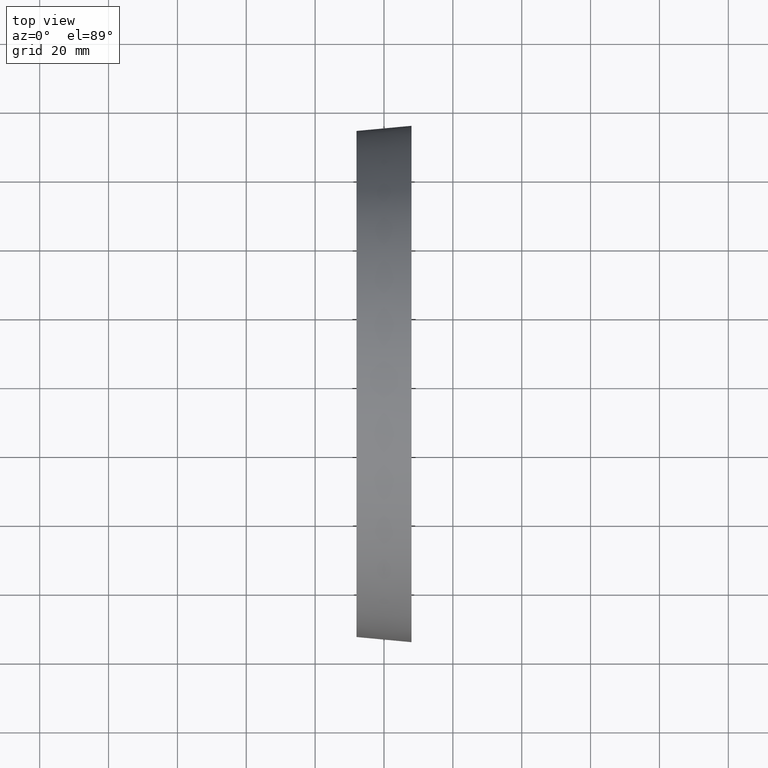
[diagram: clean part render]
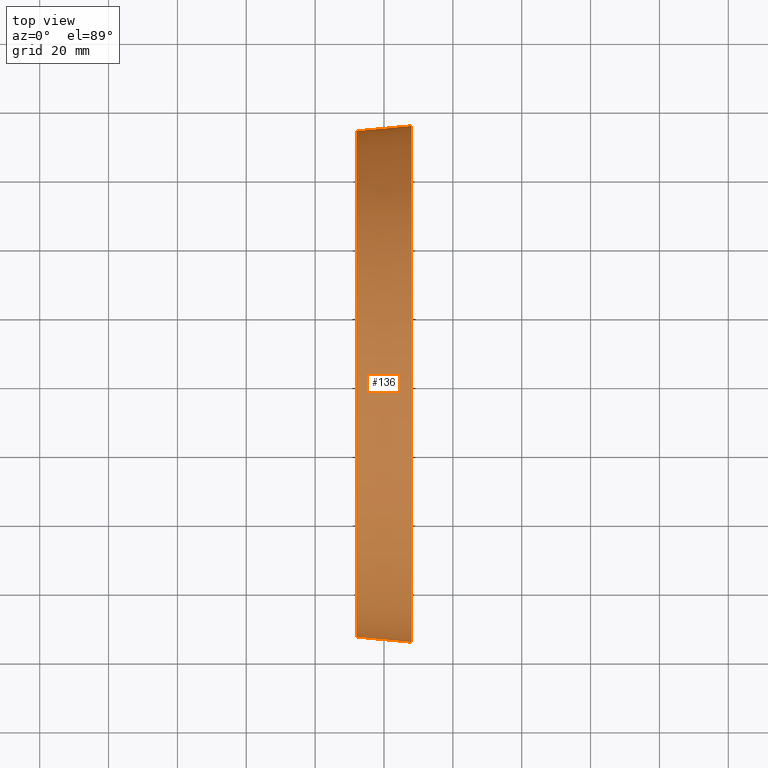
[diagram: same view with one face highlighted and labeled with its STEP entity id]
A machine part, top view. The second image highlights one B-rep face of the part: STEP entity #136.
In plain terms, the highlighted conical surface has half-angle 5.356 deg.
Its self-contained STEP definition (entity closure, byte-faithful):
#15=CONICAL_SURFACE('',#156,74.25,5.3558250428552);
#27=FACE_BOUND('',#57,.T.);
#39=FACE_OUTER_BOUND('',#56,.T.);
#56=EDGE_LOOP('',(#116));
#57=EDGE_LOOP('',(#117));
#74=CIRCLE('',#154,75.);
#76=CIRCLE('',#157,73.5);
#86=VERTEX_POINT('',#225);
#88=VERTEX_POINT('',#230);
#98=EDGE_CURVE('',#86,#86,#74,.T.);
#100=EDGE_CURVE('',#88,#88,#76,.T.);
#116=ORIENTED_EDGE('',*,*,#100,.F.);
#117=ORIENTED_EDGE('',*,*,#98,.T.);
#136=ADVANCED_FACE('',(#39,#27),#15,.T.);
#154=AXIS2_PLACEMENT_3D('',#226,#189,#190);
#156=AXIS2_PLACEMENT_3D('',#229,#193,#194);
#157=AXIS2_PLACEMENT_3D('',#231,#195,#196);
#189=DIRECTION('center_axis',(-1.,0.,0.));
#190=DIRECTION('ref_axis',(0.,0.,1.));
#193=DIRECTION('center_axis',(1.,0.,0.));
#194=DIRECTION('ref_axis',(0.,-1.,0.));
#195=DIRECTION('center_axis',(-1.,0.,0.));
#196=DIRECTION('ref_axis',(0.,0.,1.));
#225=CARTESIAN_POINT('',(8.,-75.,0.));
#226=CARTESIAN_POINT('Origin',(8.,0.,0.));
#229=CARTESIAN_POINT('Origin',(3.33066907387547E-15,0.,0.));
#230=CARTESIAN_POINT('',(-7.99999999999999,-73.5,0.));
#231=CARTESIAN_POINT('Origin',(-7.99999999999999,0.,0.));